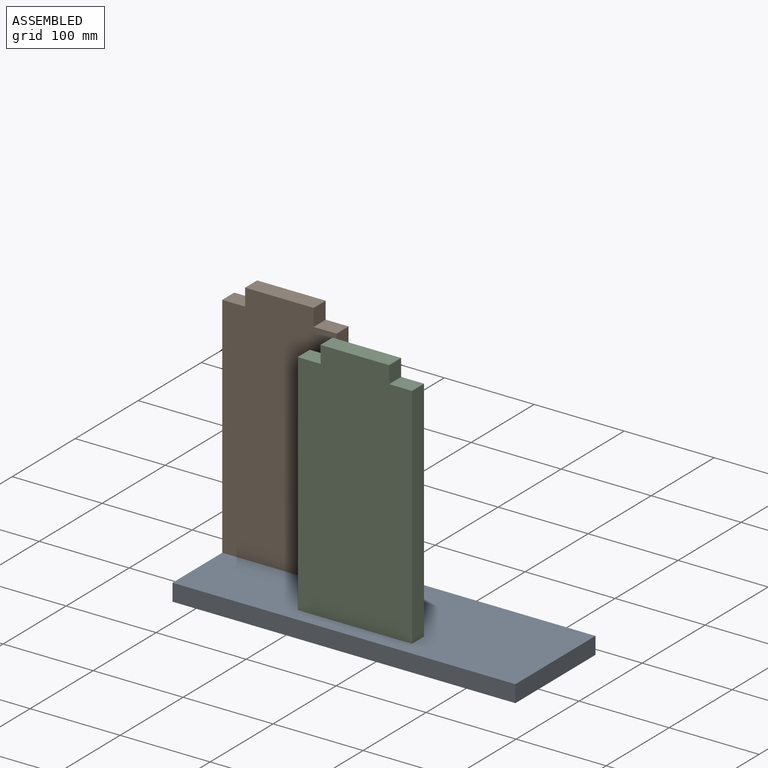
[diagram: assembled view]
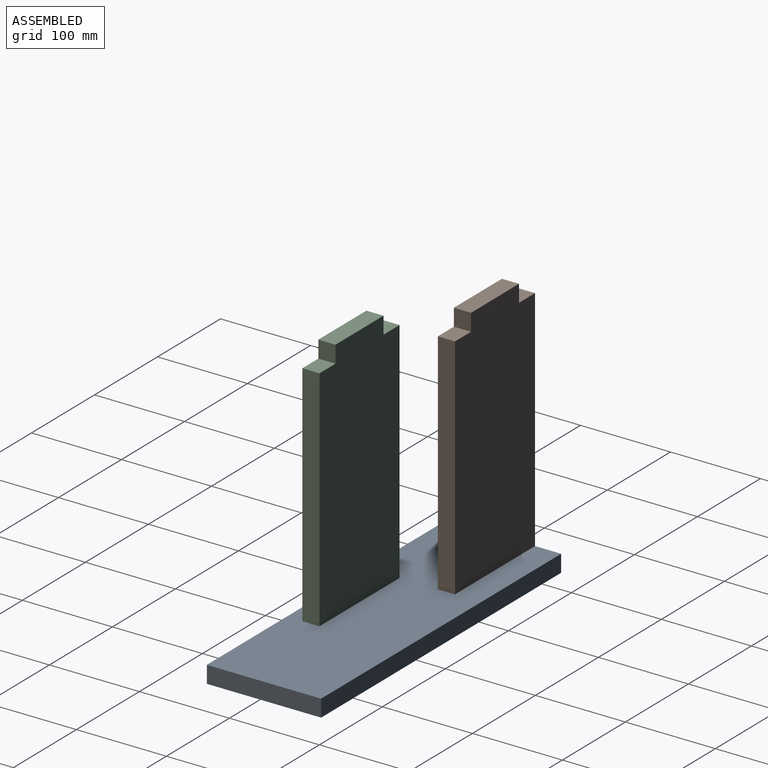
[diagram: assembled view, second angle]
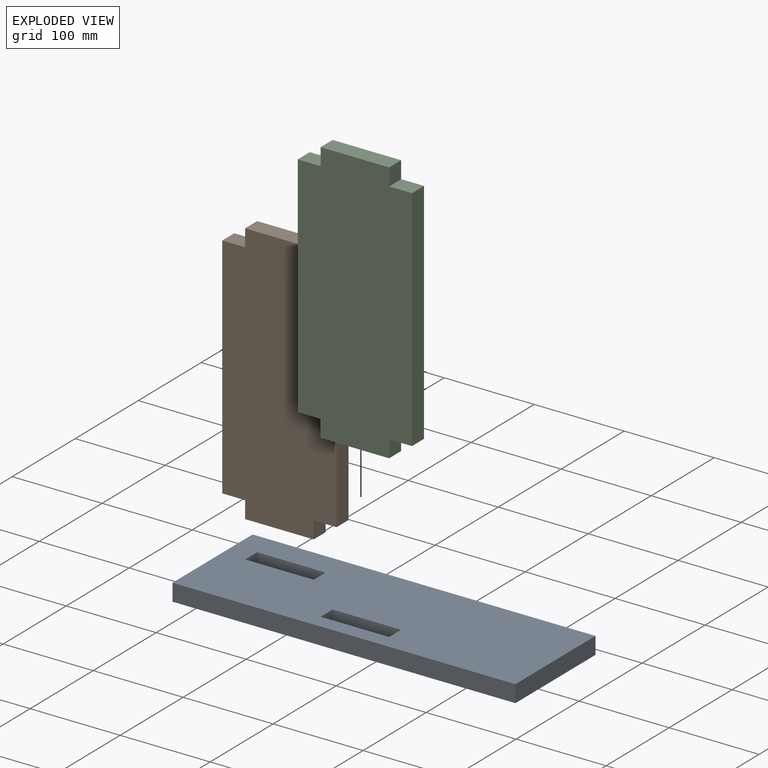
[diagram: exploded view]
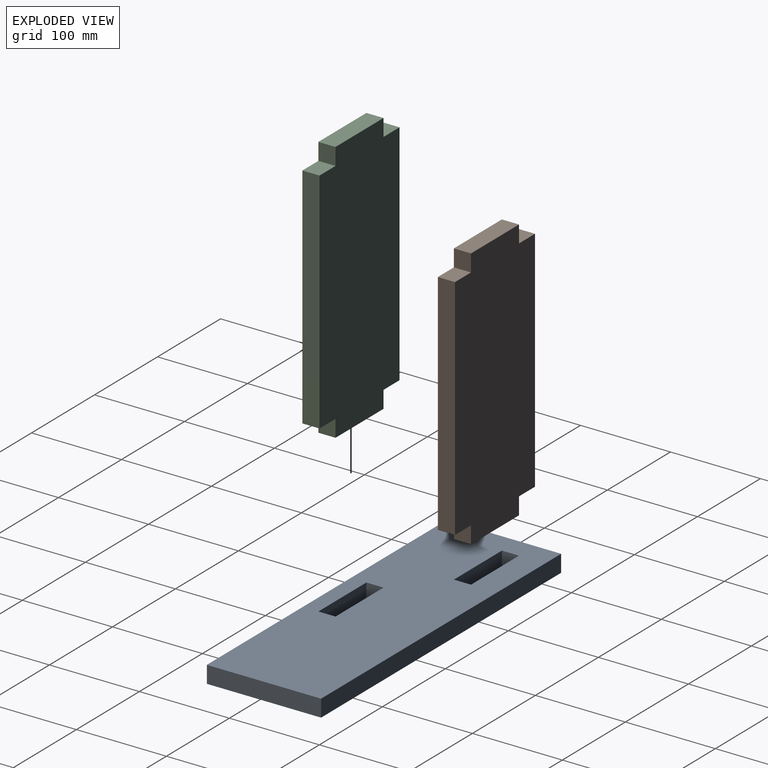
[diagram: exploded view, second angle]
ASSEMBLY  parts=3 mates=2
PART A: 14 faces, bbox 381x127x19.1 mm
  f0: plane 381x127mm, normal (0,0,1), area 45483.8mm2, adj f2,f3,f4,f5,f6,f7,f8,f9
  f1: plane 381x127mm, normal (0,0,-1), area 45483.8mm2, adj f2,f3,f4,f5,f6,f7,f8,f9
  f2: plane 127x19.05mm, normal (-1,0,0), area 2419.3mm2, adj f0,f1,f3,f5
  f3: plane 381x19.05mm, normal (0,-1,0), area 7258mm2, adj f0,f1,f2,f4
  f4: plane 127x19.05mm, normal (1,0,0), area 2419.3mm2, adj f0,f1,f3,f5
  f5: plane 381x19.05mm, normal (0,1,0), area 7258mm2, adj f0,f1,f2,f4
  f6: plane 76.2x19.05mm, normal (0,-1,0), area 1451.6mm2, adj f0,f1,f7,f9
  f7: plane 19.05x19.05mm, normal (1,0,0), area 362.9mm2, adj f0,f1,f6,f8
  f8: plane 76.2x19.05mm, normal (0,1,0), area 1451.6mm2, adj f0,f1,f7,f9
  f9: plane 19.05x19.05mm, normal (-1,0,0), area 362.9mm2, adj f0,f1,f6,f8
  f10: plane 76.2x19.05mm, normal (0,-1,0), area 1451.6mm2, adj f0,f1,f11,f13
  f11: plane 19.05x19.05mm, normal (1,0,0), area 362.9mm2, adj f0,f1,f10,f12
  f12: plane 76.2x19.05mm, normal (0,1,0), area 1451.6mm2, adj f0,f1,f11,f13
  f13: plane 19.05x19.05mm, normal (-1,0,0), area 362.9mm2, adj f0,f1,f10,f12
PART B: 14 faces, bbox 292.1x127x19.1 mm
  f0: plane 19.05x19.05mm, normal (0,1,0), area 362.9mm2, adj f1,f11,f12,f13
  f1: plane 76.2x19.05mm, normal (-1,0,0), area 1451.6mm2, adj f0,f2,f12,f13
  f2: plane 19.05x19.05mm, normal (0,-1,0), area 362.9mm2, adj f1,f3,f12,f13
  f3: plane 25.4x19.05mm, normal (-1,0,0), area 483.9mm2, adj f2,f4,f12,f13
  f4: plane 254x19.05mm, normal (0,-1,0), area 4838.7mm2, adj f3,f5,f12,f13
  f5: plane 25.4x19.05mm, normal (1,0,0), area 483.9mm2, adj f4,f6,f12,f13
  f6: plane 19.05x19.05mm, normal (0,-1,0), area 362.9mm2, adj f5,f7,f12,f13
  f7: plane 76.2x19.05mm, normal (1,0,0), area 1451.6mm2, adj f6,f8,f12,f13
  f8: plane 19.05x19.05mm, normal (0,1,0), area 362.9mm2, adj f7,f9,f12,f13
  f9: plane 25.4x19.05mm, normal (1,0,0), area 483.9mm2, adj f8,f10,f12,f13
  f10: plane 254x19.05mm, normal (0,1,0), area 4838.7mm2, adj f9,f11,f12,f13
  f11: plane 25.4x19.05mm, normal (-1,0,0), area 483.9mm2, adj f0,f10,f12,f13
  f12: plane 292.1x127mm, normal (0,0,1), area 35161.2mm2, adj f0,f1,f2,f3,f4,f5,f6,f7
  f13: plane 292.1x127mm, normal (0,0,-1), area 35161.2mm2, adj f0,f1,f2,f3,f4,f5,f6,f7
PART C: same geometry as B
PLACE A t=(-57.48,-226.48,-207.86)mm
PLACE B rot(axis=(-0.58,-0.58,-0.58),120deg) t=(-74.77,-171.17,-114.99)mm
PLACE C rot(axis=(0.58,0.58,-0.58),120deg) t=(52.23,-213.74,-8.62)mm
MATE fastened B.f11 <-> A.f0  axis (0,0,-1) through (-15.11,-171.17,-188.81)mm
MATE fastened A.f0 <-> C.f9  axis (0,0,1) through (111.89,-213.74,-188.81)mm
